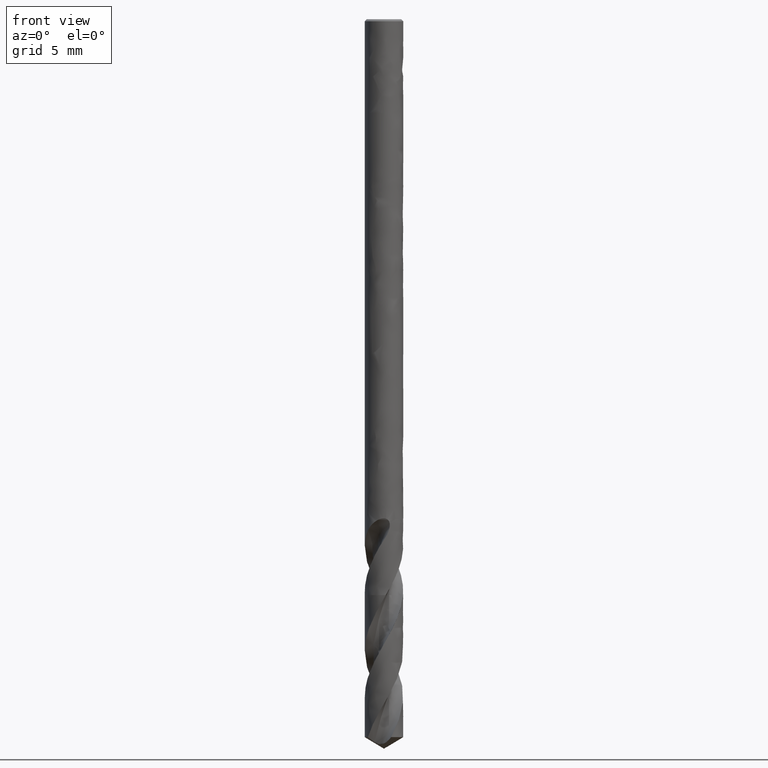
[diagram: clean part render]
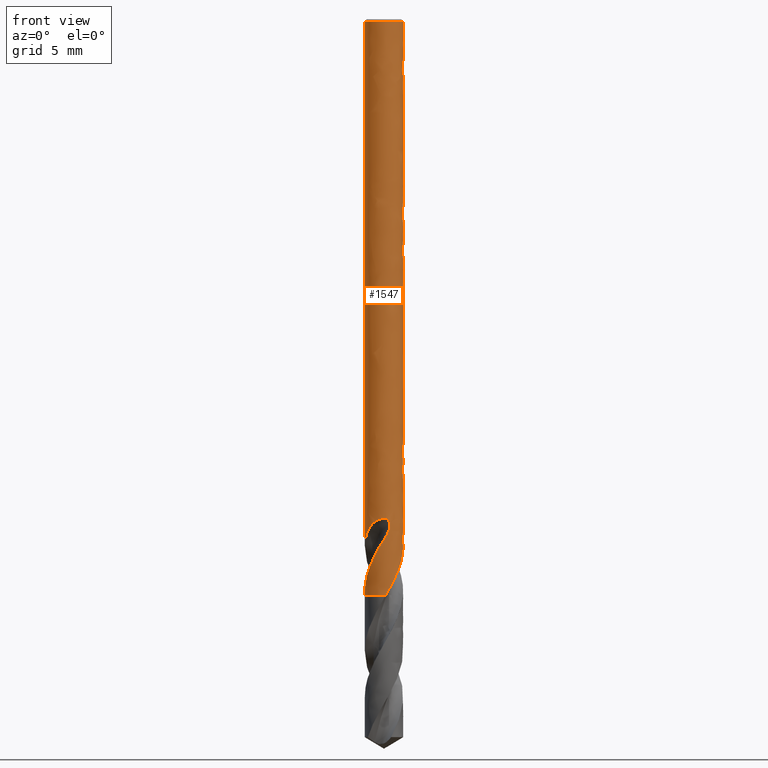
[diagram: same view with one face highlighted and labeled with its STEP entity id]
A machine part, front view. The second image highlights one B-rep face of the part: STEP entity #1547.
In plain terms, the highlighted face is a freeform B-spline surface patch.
Its self-contained STEP definition (entity closure, byte-faithful):
#73 = VERTEX_POINT('', #74);
#74 = CARTESIAN_POINT('', (-1., 6.73555739531043E-17, -0.100000000000001));
#90 = EDGE_CURVE('', #73, #73, #91, .T.);
#91 = CIRCLE('', #92, 1.);
#92 = AXIS2_PLACEMENT_3D('', #93, #94, #95);
#93 = CARTESIAN_POINT('', (3.74939945665473E-34, 6.12323399573668E-18, -0.100000000000001));
#94 = DIRECTION('', (3.74939945665464E-33, 6.12323399573677E-17, -1.));
#95 = DIRECTION('', (-1., 6.12323399573677E-17, 0.));
#129 = VERTEX_POINT('', #130);
#130 = CARTESIAN_POINT('', (0.0892022746884706, -0.996013531128166, -30.));
#139 = VERTEX_POINT('', #140);
#140 = CARTESIAN_POINT('', (0.820233834326033, 0.572028370823349, -26.5929633243649));
#165 = EDGE_CURVE('', #139, #129, #166, .T.);
#166 = B_SPLINE_CURVE_WITH_KNOTS('', 3, (#167, #168, #169, #170, #171, #172, #173, #174, #175, #176, #177, #178, #179, #180, #181, #182, #183, #184, #185, #186, #187, #188, #189, #190, #191, #192, #193, #194, #195, #196, #197, #198, #199, #200, #201, #202, #203, #204, #205, #206, #207, #208, #209, #210, #211, #212, #213, #214, #215, #216, #217, #218, #219, #220, #221, #222, #223, #224, #225, #226, #227, #228, #229, #230, #231, #232, #233, #234, #235, #236, #237, #238, #239, #240, #241, #242, #243, #244, #245, #246, #247, #248, #249, #250, #251, #252, #253, #254, #255, #256, #257), .UNSPECIFIED., .F., .U., (4, 3, 3, 3, 3, 3, 3, 3, 3, 3, 3, 3, 3, 3, 3, 3, 3, 3, 3, 3, 3, 3, 3, 3, 3, 3, 3, 3, 3, 3, 4), (0., 0.130559773605151, 0.261163531318267, 0.39182816469366, 0.522562665504094, 0.653377890110137, 0.784280432194496, 0.915281065249131, 1.00271370102755, 1.02864972184481, 1.11634475090883, 1.24805060626561, 1.30649632598959, 1.34544317250324, 1.43310372185477, 1.52072587831364, 1.57914416790791, 1.7106300376768, 1.84206578052283, 1.97349560302007, 2.10491905222947, 2.19251660133732, 2.32392258934105, 2.41151593649441, 2.60858355027827, 2.80559933237291, 3.10091408036615, 3.39603658546446, 3.6909632386327, 3.98569107425491, 4.00275386875489), .UNSPECIFIED.);
#167 = CARTESIAN_POINT('', (0.820233834326033, 0.572028370823349, -26.5929633243649));
#168 = CARTESIAN_POINT('', (0.836297249059347, 0.548994974350181, -26.6262110789591));
#169 = CARTESIAN_POINT('', (0.851242638690661, 0.525494665696933, -26.659696807052));
#170 = CARTESIAN_POINT('', (0.865060581018854, 0.501667410908204, -26.6933911720198));
#171 = CARTESIAN_POINT('', (0.878883178455205, 0.477832128987394, -26.7270968882373));
#172 = CARTESIAN_POINT('', (0.891586706356627, 0.45365411292247, -26.7610387611962));
#173 = CARTESIAN_POINT('', (0.903176270503058, 0.42926987362287, -26.7951906432313));
#174 = CARTESIAN_POINT('', (0.914771236656332, 0.404874268595801, -26.8293584437857));
#175 = CARTESIAN_POINT('', (0.925260524768472, 0.380252916133579, -26.863758256841));
#176 = CARTESIAN_POINT('', (0.934662548593376, 0.355536102606949, -26.8983661816061));
#177 = CARTESIAN_POINT('', (0.944069599756374, 0.330806072800452, -26.9329926115081));
#178 = CARTESIAN_POINT('', (0.952393406471856, 0.305967409147093, -26.9678522385555));
#179 = CARTESIAN_POINT('', (0.959666516199583, 0.281140850260791, -27.0029207498202));
#180 = CARTESIAN_POINT('', (0.96694411680783, 0.256298961878044, -27.0380109146142));
#181 = CARTESIAN_POINT('', (0.973174478397256, 0.231452696815392, -27.073330322705));
#182 = CARTESIAN_POINT('', (0.978399744802953, 0.206721888946325, -27.1088618057509));
#183 = CARTESIAN_POINT('', (0.983628499006707, 0.181974573581389, -27.1444170056042));
#184 = CARTESIAN_POINT('', (0.987853878335893, 0.157330516913604, -27.1802053952318));
#185 = CARTESIAN_POINT('', (0.99113106051936, 0.132888001241174, -27.2162021343819));
#186 = CARTESIAN_POINT('', (0.994410698438026, 0.10842716972827, -27.2522258474549));
#187 = CARTESIAN_POINT('', (0.996742224158535, 0.0841551253042054, -27.2884767068549));
#188 = CARTESIAN_POINT('', (0.998187855646047, 0.0601747857586036, -27.3249410685198));
#189 = CARTESIAN_POINT('', (0.999152701146181, 0.0441697921609095, -27.349278166578));
#190 = CARTESIAN_POINT('', (0.999723462958694, 0.0282903851073593, -27.3737170097187));
#191 = CARTESIAN_POINT('', (0.999921065859706, 0.012564316535934, -27.398253448115));
#192 = CARTESIAN_POINT('', (0.999979682792715, 0.00789933488222035, -27.4055319382504));
#193 = CARTESIAN_POINT('', (1.00000548057815, 0.00324764582949808, -27.4128193023905));
#194 = CARTESIAN_POINT('', (0.999999033861209, -0.00139006354094526, -27.42011543278));
#195 = CARTESIAN_POINT('', (0.999977236183254, -0.0170711142656147, -27.4447851525907));
#196 = CARTESIAN_POINT('', (0.999586664124454, -0.0325939120058782, -27.4695584259218));
#197 = CARTESIAN_POINT('', (0.998850502086033, -0.0479340639089024, -27.49443067366));
#198 = CARTESIAN_POINT('', (0.997744888096434, -0.0709728592574471, -27.5317853640908));
#199 = CARTESIAN_POINT('', (0.995858884559266, -0.0936163703802478, -27.569370655436));
#200 = CARTESIAN_POINT('', (0.993272187235476, -0.115803117680196, -27.6071653456952));
#201 = CARTESIAN_POINT('', (0.992124315818617, -0.125648696760693, -27.6239370971709));
#202 = CARTESIAN_POINT('', (0.990838429943319, -0.135404802749157, -27.6407527838199));
#203 = CARTESIAN_POINT('', (0.989422650758689, -0.145061428938463, -27.6576136801105));
#204 = CARTESIAN_POINT('', (0.988479208965835, -0.151496376438654, -27.6688493829647));
#205 = CARTESIAN_POINT('', (0.987478149976465, -0.157886890708616, -27.6801059448119));
#206 = CARTESIAN_POINT('', (0.986421861477089, -0.164231273514137, -27.6913830327248));
#207 = CARTESIAN_POINT('', (0.984044394790625, -0.178511045352233, -27.7167652089477));
#208 = CARTESIAN_POINT('', (0.981388733095139, -0.192552899752749, -27.7422573415975));
#209 = CARTESIAN_POINT('', (0.978466314575305, -0.206406567825763, -27.7678181407305));
#210 = CARTESIAN_POINT('', (0.975545175993839, -0.220254168375871, -27.7933677449414));
#211 = CARTESIAN_POINT('', (0.972358286850773, -0.233916316427618, -27.8189890099795));
#212 = CARTESIAN_POINT('', (0.9688797729416, -0.247531787018634, -27.8445935070165));
#213 = CARTESIAN_POINT('', (0.966560623982978, -0.256609314165795, -27.8616641999013));
#214 = CARTESIAN_POINT('', (0.96410804866676, -0.265677135164884, -27.8787224674278));
#215 = CARTESIAN_POINT('', (0.961521053735712, -0.274731256363314, -27.895767081038));
#216 = CARTESIAN_POINT('', (0.955698334841354, -0.295109959831643, -27.9341305090153));
#217 = CARTESIAN_POINT('', (0.949194874569849, -0.31541345124448, -27.9724367246868));
#218 = CARTESIAN_POINT('', (0.94202530128647, -0.335541847965547, -28.0107041139486));
#219 = CARTESIAN_POINT('', (0.934858461290307, -0.355662571051481, -28.0489569143693));
#220 = CARTESIAN_POINT('', (0.927027827600534, -0.375606677977791, -28.0871845504268));
#221 = CARTESIAN_POINT('', (0.918540056237776, -0.395327920955126, -28.1253750485353));
#222 = CARTESIAN_POINT('', (0.910052667195427, -0.415048275615216, -28.1635638264035));
#223 = CARTESIAN_POINT('', (0.900905112404991, -0.434553586876834, -28.2017234454699));
#224 = CARTESIAN_POINT('', (0.891099922112806, -0.453807149360332, -28.2398347232072));
#225 = CARTESIAN_POINT('', (0.881295207293379, -0.473059778201118, -28.2779441528544));
#226 = CARTESIAN_POINT('', (0.870830466391313, -0.492063736057131, -28.3160160323727));
#227 = CARTESIAN_POINT('', (0.859729178451579, -0.51075017348893, -28.3540515846915));
#228 = CARTESIAN_POINT('', (0.852329847348102, -0.523205227213588, -28.3794033859274));
#229 = CARTESIAN_POINT('', (0.844647228314536, -0.535520401683665, -28.4047432085626));
#230 = CARTESIAN_POINT('', (0.836691014876986, -0.547675219107198, -28.4300720729489));
#231 = CARTESIAN_POINT('', (0.824755816938485, -0.565908786242481, -28.4680681639766));
#232 = CARTESIAN_POINT('', (0.812198128913853, -0.583790791082237, -28.5060441731494));
#233 = CARTESIAN_POINT('', (0.799059878489804, -0.601251453709558, -28.5440063449801));
#234 = CARTESIAN_POINT('', (0.790302109168448, -0.612890481019328, -28.5693113843195));
#235 = CARTESIAN_POINT('', (0.781286880768287, -0.624341889907902, -28.5946156132089));
#236 = CARTESIAN_POINT('', (0.77203297551443, -0.635582476723779, -28.6199242074361));
#237 = CARTESIAN_POINT('', (0.751213528766191, -0.66087156194913, -28.6768635120142));
#238 = CARTESIAN_POINT('', (0.729171202973501, -0.68511337015154, -28.7338434337919));
#239 = CARTESIAN_POINT('', (0.705994268927292, -0.708217545844365, -28.7908004210195));
#240 = CARTESIAN_POINT('', (0.682823430756603, -0.731315644798191, -28.8477424277194));
#241 = CARTESIAN_POINT('', (0.658502086970476, -0.753290010240155, -28.9046947216929));
#242 = CARTESIAN_POINT('', (0.633173652633674, -0.774009771004559, -28.9616329686955));
#243 = CARTESIAN_POINT('', (0.595207860636144, -0.805067439905827, -29.046979959104));
#244 = CARTESIAN_POINT('', (0.554938546940676, -0.833335223584388, -29.1323934047892));
#245 = CARTESIAN_POINT('', (0.512843267652723, -0.858482255392198, -29.2177497354524));
#246 = CARTESIAN_POINT('', (0.47077539139292, -0.883612917078887, -29.3030505011694));
#247 = CARTESIAN_POINT('', (0.426831502448818, -0.905657231462521, -29.3884110420001));
#248 = CARTESIAN_POINT('', (0.381546362554769, -0.924349702883729, -29.4737182786138));
#249 = CARTESIAN_POINT('', (0.33629127520466, -0.943029769433935, -29.5589689028491));
#250 = CARTESIAN_POINT('', (0.289635831779578, -0.958387702609661, -29.6442795666985));
#251 = CARTESIAN_POINT('', (0.242144546271771, -0.970240186093614, -29.7295364326154));
#252 = CARTESIAN_POINT('', (0.194685275845479, -0.982084679517479, -29.814735824714));
#253 = CARTESIAN_POINT('', (0.1463289711457, -0.990444051764301, -29.8999952848897));
#254 = CARTESIAN_POINT('', (0.0976588746761553, -0.995219947648249, -29.985201055328));
#255 = CARTESIAN_POINT('', (0.0948411976399806, -0.995496440466951, -29.9901339065062));
#256 = CARTESIAN_POINT('', (0.0920221605279062, -0.995760984126165, -29.9950671269254));
#257 = CARTESIAN_POINT('', (0.0892022746884706, -0.996013531128166, -30.));
#359 = VERTEX_POINT('', #360);
#360 = CARTESIAN_POINT('', (0.982233978294788, 0.187660363111648, -29.4760360384215));
#370 = EDGE_CURVE('', #371, #359, #373, .T.);
#371 = VERTEX_POINT('', #372);
#372 = CARTESIAN_POINT('', (0.490775466668018, 0.871286084656924, -27.9558637886428));
#373 = B_SPLINE_CURVE_WITH_KNOTS('', 3, (#374, #375, #376, #377, #378, #379, #380, #381, #382, #383, #384, #385, #386, #387, #388, #389, #390, #391, #392, #393, #394, #395, #396, #397, #398, #399, #400, #401, #402, #403, #404, #405, #406, #407), .UNSPECIFIED., .F., .U., (4, 3, 3, 3, 3, 3, 3, 3, 3, 3, 3, 4), (0., 0.131414917532841, 0.328475479729887, 0.525501249424779, 0.656852061512318, 0.744423692268076, 0.941378259086426, 1.13828024597326, 1.33511823803413, 1.53189839187537, 1.72861731540205, 1.75093466749423), .UNSPECIFIED.);
#374 = CARTESIAN_POINT('', (0.490775466668019, 0.871286084656924, -27.9558637886428));
#375 = CARTESIAN_POINT('', (0.508996727088675, 0.861022466605744, -27.9943542995496));
#376 = CARTESIAN_POINT('', (0.527033612540354, 0.850108147702139, -28.0327646174293));
#377 = CARTESIAN_POINT('', (0.544788640034696, 0.838573394336791, -28.0711128126953));
#378 = CARTESIAN_POINT('', (0.571412829780769, 0.821276689931739, -28.1286170676173));
#379 = CARTESIAN_POINT('', (0.597432488260182, 0.802568572117667, -28.1859987467021));
#380 = CARTESIAN_POINT('', (0.622689291997332, 0.782469197880571, -28.2432077653732));
#381 = CARTESIAN_POINT('', (0.647941636458671, 0.762373372336901, -28.3004066833682));
#382 = CARTESIAN_POINT('', (0.672438294712122, 0.740875374762727, -28.3574693049333));
#383 = CARTESIAN_POINT('', (0.695923870179686, 0.718115566544919, -28.41442242776));
#384 = CARTESIAN_POINT('', (0.711580956127301, 0.70294232653172, -28.4523912627292));
#385 = CARTESIAN_POINT('', (0.726796920407524, 0.687201692631562, -28.4903220797967));
#386 = CARTESIAN_POINT('', (0.741495789266643, 0.670957520637386, -28.5282308401599));
#387 = CARTESIAN_POINT('', (0.751295530096569, 0.660127525685707, -28.5535046234899));
#388 = CARTESIAN_POINT('', (0.760866052116748, 0.649073291197624, -28.5787732200171));
#389 = CARTESIAN_POINT('', (0.77018106679327, 0.637825308648993, -28.6040477373214));
#390 = CARTESIAN_POINT('', (0.791131169751133, 0.612527829187582, -28.6608918495555));
#391 = CARTESIAN_POINT('', (0.810803358942247, 0.58623659869544, -28.7177875244286));
#392 = CARTESIAN_POINT('', (0.829136629533732, 0.559046017395212, -28.774661823147));
#393 = CARTESIAN_POINT('', (0.847465005787767, 0.531862695022389, -28.8315209384311));
#394 = CARTESIAN_POINT('', (0.864469559483466, 0.503754041776545, -28.8883872574712));
#395 = CARTESIAN_POINT('', (0.880045318542041, 0.47488971068263, -28.9452385327645));
#396 = CARTESIAN_POINT('', (0.895616015346008, 0.446034760742629, -29.0020713309082));
#397 = CARTESIAN_POINT('', (0.909766712839649, 0.416411804733838, -29.0589260485009));
#398 = CARTESIAN_POINT('', (0.922424079443914, 0.386178479024955, -29.1157658124612));
#399 = CARTESIAN_POINT('', (0.935077726849756, 0.355954036975746, -29.1725888748147));
#400 = CARTESIAN_POINT('', (0.946247320452676, 0.325099047787474, -29.2294297957214));
#401 = CARTESIAN_POINT('', (0.955872366106548, 0.293782265825895, -29.2862550521557));
#402 = CARTESIAN_POINT('', (0.965494416821339, 0.262475228426321, -29.3430626267848));
#403 = CARTESIAN_POINT('', (0.973578492629094, 0.230688522783995, -29.3998890869299));
#404 = CARTESIAN_POINT('', (0.980081614277475, 0.198595139303776, -29.4567005217961));
#405 = CARTESIAN_POINT('', (0.980819379881939, 0.19495421180114, -29.4631456607387));
#406 = CARTESIAN_POINT('', (0.98153685068964, 0.191309201948095, -29.4695908498747));
#407 = CARTESIAN_POINT('', (0.982233978294788, 0.187660363111643, -29.4760360384215));
#410 = VERTEX_POINT('', #411);
#411 = CARTESIAN_POINT('', (0.246002530381347, 0.969269186060291, -27.4932058231273));
#420 = EDGE_CURVE('', #421, #410, #423, .T.);
#421 = VERTEX_POINT('', #422);
#422 = CARTESIAN_POINT('', (0.00772631099795137, 0.99997015161372, -26.));
#423 = B_SPLINE_CURVE_WITH_KNOTS('', 3, (#424, #425, #426, #427, #428, #429, #430, #431, #432, #433, #434, #435, #436, #437, #438, #439, #440, #441, #442, #443, #444, #445, #446, #447, #448, #449, #450, #451, #452, #453, #454, #455, #456, #457, #458, #459, #460, #461, #462, #463, #464, #465, #466, #467, #468, #469, #470, #471, #472, #473, #474, #475, #476, #477, #478, #479, #480, #481, #482, #483, #484, #485, #486, #487, #488, #489, #490, #491, #492, #493, #494, #495, #496, #497, #498, #499, #500, #501, #502, #503, #504, #505, #506, #507, #508, #509, #510, #511), .UNSPECIFIED., .F., .U., (4, 3, 3, 3, 3, 3, 3, 3, 3, 3, 3, 3, 3, 3, 3, 3, 3, 3, 3, 3, 3, 3, 3, 3, 3, 3, 3, 3, 3, 4), (0., 0.0172874337608875, 0.0760638562588393, 0.134571616713359, 0.173356254986409, 0.212042548963615, 0.250657613759585, 0.28924385214064, 0.327845348796306, 0.366494484872518, 0.405207114387865, 0.443985592686044, 0.502249842305958, 0.560640228683373, 0.619123485872933, 0.707096440453135, 0.795174061407525, 0.883284322888988, 0.971379769013531, 1.05943131893812, 1.14742117820325, 1.23533724755918, 1.32317583754008, 1.36213641245224, 1.38810251818908, 1.47607046198281, 1.56398738523536, 1.6518513593332, 1.73965887937366, 1.82201907213121), .UNSPECIFIED.);
#424 = CARTESIAN_POINT('', (0.00772631098295753, 0.999970151613841, -26.));
#425 = CARTESIAN_POINT('', (0.00196400752444216, 1.00001467429127, -26.0000053258871));
#426 = CARTESIAN_POINT('', (-0.00379996085726174, 1.00000935672964, -26.0001194226774));
#427 = CARTESIAN_POINT('', (-0.0095575837068471, 0.999954325253755, -26.0003494279828));
#428 = CARTESIAN_POINT('', (-0.0291332175384423, 0.999767220948854, -26.0011314346815));
#429 = CARTESIAN_POINT('', (-0.0487265070050468, 0.998997219917961, -26.0032624623447));
#430 = CARTESIAN_POINT('', (-0.0679101674261391, 0.997691439855107, -26.0070219960501));
#431 = CARTESIAN_POINT('', (-0.0870061409620789, 0.996391628402201, -26.0107643452457));
#432 = CARTESIAN_POINT('', (-0.105847624699667, 0.994547351160411, -26.0161638579928));
#433 = CARTESIAN_POINT('', (-0.123823220522418, 0.992304293077209, -26.0233886443463));
#434 = CARTESIAN_POINT('', (-0.135739195024123, 0.99081737585962, -26.0281779359401));
#435 = CARTESIAN_POINT('', (-0.147339230514646, 0.989149663337741, -26.0337929798066));
#436 = CARTESIAN_POINT('', (-0.158418290266976, 0.987372090606622, -26.0402143001768));
#437 = CARTESIAN_POINT('', (-0.169469257393502, 0.985599025179074, -26.0466193383215));
#438 = CARTESIAN_POINT('', (-0.180059219441125, 0.983707877152713, -26.0538619533324));
#439 = CARTESIAN_POINT('', (-0.189999515367349, 0.981784184105741, -26.0618483211574));
#440 = CARTESIAN_POINT('', (-0.199921509226683, 0.979864032961253, -26.0698199844868));
#441 = CARTESIAN_POINT('', (-0.209250610328152, 0.977901746799412, -26.0785764455466));
#442 = CARTESIAN_POINT('', (-0.217850575693299, 0.975982134401087, -26.0879591979551));
#443 = CARTESIAN_POINT('', (-0.226444121124382, 0.974063955006792, -26.0973349460735));
#444 = CARTESIAN_POINT('', (-0.234356114061115, 0.972178850838706, -26.1073841557696));
#445 = CARTESIAN_POINT('', (-0.241520383325684, 0.970395746300559, -26.1179163384567));
#446 = CARTESIAN_POINT('', (-0.248687485579225, 0.968611936663915, -26.1284526859172));
#447 = CARTESIAN_POINT('', (-0.255141795677507, 0.966921915630207, -26.1395201127976));
#448 = CARTESIAN_POINT('', (-0.260879613050615, 0.965371341761586, -26.1509322607904));
#449 = CARTESIAN_POINT('', (-0.266624511659388, 0.963818854276991, -26.1623584929034));
#450 = CARTESIAN_POINT('', (-0.271675405472682, 0.962399799947363, -26.1741736471042));
#451 = CARTESIAN_POINT('', (-0.276069484495985, 0.961137679903417, -26.1862182301292));
#452 = CARTESIAN_POINT('', (-0.280470782184886, 0.959873486427816, -26.1982826001942));
#453 = CARTESIAN_POINT('', (-0.284228056815733, 0.958762413263087, -26.2106138862455));
#454 = CARTESIAN_POINT('', (-0.287398016631452, 0.95781124447164, -26.2230864667424));
#455 = CARTESIAN_POINT('', (-0.290573368434182, 0.956858457776475, -26.2355802626477));
#456 = CARTESIAN_POINT('', (-0.293167785993098, 0.956063474143145, -26.2482455456756));
#457 = CARTESIAN_POINT('', (-0.295242908241833, 0.955422223487034, -26.2609879262589));
#458 = CARTESIAN_POINT('', (-0.298360757265265, 0.954458751222617, -26.2801332170397));
#459 = CARTESIAN_POINT('', (-0.300317806994106, 0.953839762677668, -26.2995110091674));
#460 = CARTESIAN_POINT('', (-0.301307852082411, 0.95352691533773, -26.3189046513649));
#461 = CARTESIAN_POINT('', (-0.302300040527544, 0.953213390711991, -26.3383402790193));
#462 = CARTESIAN_POINT('', (-0.302324586337989, 0.953205390504635, -26.3578483253974));
#463 = CARTESIAN_POINT('', (-0.301542992733488, 0.953452580642234, -26.3772945169627));
#464 = CARTESIAN_POINT('', (-0.300760155992277, 0.953700163939567, -26.3967716379963));
#465 = CARTESIAN_POINT('', (-0.299167363395816, 0.954203626872317, -26.4162260077868));
#466 = CARTESIAN_POINT('', (-0.296892979752641, 0.954910759481535, -26.435574380254));
#467 = CARTESIAN_POINT('', (-0.29347175702063, 0.955974457844151, -26.4646790090666));
#468 = CARTESIAN_POINT('', (-0.288502980813909, 0.957500766773461, -26.4936130834965));
#469 = CARTESIAN_POINT('', (-0.282308965909467, 0.959323536543918, -26.5222177566678));
#470 = CARTESIAN_POINT('', (-0.276107581636963, 0.961148474966137, -26.5508564624283));
#471 = CARTESIAN_POINT('', (-0.268663267886244, 0.963273936044112, -26.579226624308));
#472 = CARTESIAN_POINT('', (-0.260211111511362, 0.965551747679028, -26.6072504652572));
#473 = CARTESIAN_POINT('', (-0.251755822867057, 0.967830403444058, -26.6352846915112));
#474 = CARTESIAN_POINT('', (-0.242278407600293, 0.970264779955003, -26.6630124496522));
#475 = CARTESIAN_POINT('', (-0.231957882326462, 0.972725830245413, -26.6903991619294));
#476 = CARTESIAN_POINT('', (-0.22163909240403, 0.975186466720929, -26.7177812692501));
#477 = CARTESIAN_POINT('', (-0.210466658832815, 0.977676153631823, -26.7448499592448));
#478 = CARTESIAN_POINT('', (-0.198588803727451, 0.980082898041847, -26.771597596488));
#479 = CARTESIAN_POINT('', (-0.186716867119871, 0.982488443219237, -26.7983319059182));
#480 = CARTESIAN_POINT('', (-0.174130584588898, 0.984813042081892, -26.8247647889868));
#481 = CARTESIAN_POINT('', (-0.160955909898685, 0.986961597565321, -26.8509041172733));
#482 = CARTESIAN_POINT('', (-0.147790465646443, 0.989108647728232, -26.8770251318287));
#483 = CARTESIAN_POINT('', (-0.134029727911344, 0.991081084638355, -26.9028672067247));
#484 = CARTESIAN_POINT('', (-0.119791303444234, 0.992799095295285, -26.9284516132303));
#485 = CARTESIAN_POINT('', (-0.105564819580933, 0.994515665196979, -26.9540145641835));
#486 = CARTESIAN_POINT('', (-0.0908556334920489, 0.995978942175521, -26.9793313923168));
#487 = CARTESIAN_POINT('', (-0.0757730033635135, 0.997125093436765, -27.0044312832024));
#488 = CARTESIAN_POINT('', (-0.0607036653755933, 0.99827023460868, -27.029509053856));
#489 = CARTESIAN_POINT('', (-0.0452561663329958, 0.999099172334949, -27.0543786162178));
#490 = CARTESIAN_POINT('', (-0.0295379920003732, 0.999563658317248, -27.0790770802402));
#491 = CARTESIAN_POINT('', (-0.0225662372317477, 0.999769679849617, -27.0900320188153));
#492 = CARTESIAN_POINT('', (-0.0155406190332311, 0.999904233887445, -27.1009544027664));
#493 = CARTESIAN_POINT('', (-0.00847066859247713, 0.99996412324323, -27.1118480111052));
#494 = CARTESIAN_POINT('', (-0.00375874939948147, 1.00000403778115, -27.1191082886196));
#495 = CARTESIAN_POINT('', (0.000972982528125538, 1.00001080299376, -27.12635599846));
#496 = CARTESIAN_POINT('', (0.00572188354140633, 0.999983629890381, -27.1335921995369));
#497 = CARTESIAN_POINT('', (0.0218102050499226, 0.999891572881349, -27.158106993402));
#498 = CARTESIAN_POINT('', (0.0380982356497104, 0.999408700825087, -27.1824929435558));
#499 = CARTESIAN_POINT('', (0.0544819990008416, 0.998514752913028, -27.2067950183085));
#500 = CARTESIAN_POINT('', (0.0708562599305578, 0.997621323481956, -27.2310829980971));
#501 = CARTESIAN_POINT('', (0.0873297955817186, 0.996316996895141, -27.2552923816268));
#502 = CARTESIAN_POINT('', (0.103794881002057, 0.994598724450303, -27.2794743811566));
#503 = CARTESIAN_POINT('', (0.120250050102274, 0.992881486858257, -27.3036418167506));
#504 = CARTESIAN_POINT('', (0.136698840651517, 0.990750564769908, -27.3277876766197));
#505 = CARTESIAN_POINT('', (0.153034541470358, 0.988220840256347, -27.3519647693087));
#506 = CARTESIAN_POINT('', (0.169359746331088, 0.98569274113265, -27.3761263278156));
#507 = CARTESIAN_POINT('', (0.185575367051684, 0.982765913115138, -27.4003239643886));
#508 = CARTESIAN_POINT('', (0.201581769731714, 0.979471689285522, -27.4246062145111));
#509 = CARTESIAN_POINT('', (0.216595180991649, 0.976381829675904, -27.4473820633194));
#510 = CARTESIAN_POINT('', (0.231427342767012, 0.972968398916198, -27.4702369579124));
#511 = CARTESIAN_POINT('', (0.246002530381347, 0.969269186060291, -27.4932058231273));
#513 = EDGE_CURVE('', #421, #514, #516, .T.);
#514 = VERTEX_POINT('', #515);
#515 = CARTESIAN_POINT('', (0.0085737161553439, 0.999963245020181, -26.));
#516 = LINE('', #517, #518);
#517 = CARTESIAN_POINT('', (0.00772631099795137, 0.99997015161372, -26.));
#518 = VECTOR('', #519, 0.00084743330227798);
#519 = DIRECTION('', (0.000847405157392526, -6.90659353885792E-6, 0.));
#521 = EDGE_CURVE('', #514, #139, #522, .T.);
#522 = B_SPLINE_CURVE_WITH_KNOTS('', 3, (#523, #524, #525, #526, #527, #528, #529, #530, #531, #532, #533, #534, #535, #536, #537, #538, #539, #540, #541, #542, #543, #544, #545, #546, #547, #548, #549, #550, #551, #552, #553, #554, #555, #556, #557, #558, #559, #560, #561, #562), .UNSPECIFIED., .F., .U., (4, 3, 3, 3, 3, 3, 3, 3, 3, 3, 3, 3, 3, 4), (0., 0.0588676359280913, 0.117473793978531, 0.175893472582458, 0.23418115746177, 0.292374836441839, 0.379386324441757, 0.466240350632785, 0.552996867439667, 0.639694269644428, 0.769031744835816, 0.898333247745336, 1.02767732757917, 1.151236942157), .UNSPECIFIED.);
#523 = CARTESIAN_POINT('', (0.00857371615550034, 0.99996324502018, -26.));
#524 = CARTESIAN_POINT('', (0.0281955318757105, 0.999795006958153, -26.0000181166948));
#525 = CARTESIAN_POINT('', (0.0478447434037307, 0.999044920849632, -26.00129224874));
#526 = CARTESIAN_POINT('', (0.0672909063978631, 0.997733398216256, -26.0035662183101));
#527 = CARTESIAN_POINT('', (0.0866506935532513, 0.996427701095477, -26.0058300873772));
#528 = CARTESIAN_POINT('', (0.105880716410157, 0.994562436101714, -26.0090921293414));
#529 = CARTESIAN_POINT('', (0.124840522636852, 0.992176820888172, -26.0131499483029));
#530 = CARTESIAN_POINT('', (0.143740000490407, 0.989798796484529, -26.0171948556549));
#531 = CARTESIAN_POINT('', (0.162421490164328, 0.986898320831081, -26.022041189864));
#532 = CARTESIAN_POINT('', (0.18079612212115, 0.983520595730439, -26.0275339498518));
#533 = CARTESIAN_POINT('', (0.199129238339297, 0.980150502279396, -26.0330142994692));
#534 = CARTESIAN_POINT('', (0.217193899601074, 0.976299031741094, -26.0391493939458));
#535 = CARTESIAN_POINT('', (0.234931172026889, 0.97201200836722, -26.0458206389233));
#536 = CARTESIAN_POINT('', (0.252639837925477, 0.967731899069418, -26.0524811245717));
#537 = CARTESIAN_POINT('', (0.270050310963938, 0.963011134343171, -26.0596868197025));
#538 = CARTESIAN_POINT('', (0.287121675198787, 0.957894119217278, -26.0673459927612));
#539 = CARTESIAN_POINT('', (0.312646866771078, 0.950243131893131, -26.0787980276965));
#540 = CARTESIAN_POINT('', (0.337471462070299, 0.941688565824157, -26.0912882377451));
#541 = CARTESIAN_POINT('', (0.361503178369914, 0.932370876866311, -26.1045878392495));
#542 = CARTESIAN_POINT('', (0.385491405268231, 0.923070049821663, -26.1178633729054));
#543 = CARTESIAN_POINT('', (0.40874441093088, 0.912988252184789, -26.1319765322372));
#544 = CARTESIAN_POINT('', (0.431202090790575, 0.902255372329719, -26.1467629487274));
#545 = CARTESIAN_POINT('', (0.453634557834831, 0.891534542077307, -26.1615327647856));
#546 = CARTESIAN_POINT('', (0.475314708622501, 0.880144719081453, -26.1770019813742));
#547 = CARTESIAN_POINT('', (0.49620223748813, 0.868206968131318, -26.1930488030385));
#548 = CARTESIAN_POINT('', (0.517075533901794, 0.856277351387392, -26.2090846906368));
#549 = CARTESIAN_POINT('', (0.53718924974289, 0.843782470518272, -26.2257222545205));
#550 = CARTESIAN_POINT('', (0.556516648685946, 0.830836457875655, -26.2428690430434));
#551 = CARTESIAN_POINT('', (0.585349773067316, 0.811523254176225, -26.2684490751873));
#552 = CARTESIAN_POINT('', (0.61249832470549, 0.791160548155259, -26.2952206492671));
#553 = CARTESIAN_POINT('', (0.637914325559936, 0.770107338781689, -26.3229600836314));
#554 = CARTESIAN_POINT('', (0.663323257530862, 0.749059984880251, -26.3506918029019));
#555 = CARTESIAN_POINT('', (0.687060764661984, 0.72727327973745, -26.379460352683));
#556 = CARTESIAN_POINT('', (0.709121273400931, 0.705086533420008, -26.4091038245761));
#557 = CARTESIAN_POINT('', (0.73118904631384, 0.68289248136058, -26.4387570575921));
#558 = CARTESIAN_POINT('', (0.751625070605199, 0.660252344445498, -26.4693442658604));
#559 = CARTESIAN_POINT('', (0.770464862798542, 0.63748246657679, -26.5007364889166));
#560 = CARTESIAN_POINT('', (0.788462110644182, 0.61573089250354, -26.530724803701));
#561 = CARTESIAN_POINT('', (0.805031683782676, 0.593826797031181, -26.5614981982408));
#562 = CARTESIAN_POINT('', (0.820233834326033, 0.572028370823349, -26.5929633243649));
#690 = VERTEX_POINT('', #691);
#691 = CARTESIAN_POINT('', (0.993616073432345, -0.112814443299109, -30.));
#697 = EDGE_CURVE('', #359, #690, #698, .T.);
#698 = B_SPLINE_CURVE_WITH_KNOTS('', 3, (#699, #700, #701, #702, #703, #704, #705, #706, #707, #708, #709, #710, #711), .UNSPECIFIED., .F., .U., (4, 3, 3, 3, 4), (0., 0.294641514480236, 0.352985246719214, 0.378925942835745, 0.604559301757479), .UNSPECIFIED.);
#699 = CARTESIAN_POINT('', (0.982233978294788, 0.187660363111648, -29.4760360384215));
#700 = CARTESIAN_POINT('', (0.991437701591293, 0.139487112251676, -29.5611276795221));
#701 = CARTESIAN_POINT('', (0.9970921989418, 0.0906124361657994, -29.6462822031108));
#702 = CARTESIAN_POINT('', (0.99913310532703, 0.0416297710727098, -29.7313850304883));
#703 = CARTESIAN_POINT('', (0.9995372374327, 0.0319304199762285, -29.7482367514077));
#704 = CARTESIAN_POINT('', (0.9998001106538, 0.0222253078987662, -29.7650891367334));
#705 = CARTESIAN_POINT('', (0.999921633212985, 0.0125190827410035, -29.7819413074497));
#706 = CARTESIAN_POINT('', (0.999975664377228, 0.00820351656801976, -29.7894340924101));
#707 = CARTESIAN_POINT('', (1.0000017558914, 0.00388765700191563, -29.7969269619489));
#708 = CARTESIAN_POINT('', (0.999999908370104, -0.00042808852294053, -29.8044198381907));
#709 = CARTESIAN_POINT('', (0.999983838545535, -0.0379666400965118, -29.8695932177647));
#710 = CARTESIAN_POINT('', (0.997849655205137, -0.0755270643552331, -29.9348199365261));
#711 = CARTESIAN_POINT('', (0.993616073432345, -0.112814443299109, -30.));
#752 = EDGE_CURVE('', #410, #371, #753, .T.);
#753 = B_SPLINE_CURVE_WITH_KNOTS('', 3, (#754, #755, #756, #757, #758, #759, #760, #761, #762, #763, #764, #765, #766, #767, #768, #769, #770, #771, #772, #773, #774, #775), .UNSPECIFIED., .F., .U., (4, 3, 3, 3, 3, 3, 3, 4), (0., 0.131643903931582, 0.190079255713099, 0.229021862755596, 0.316662613980427, 0.404257685423499, 0.462663609143952, 0.533098796016694), .UNSPECIFIED.);
#754 = CARTESIAN_POINT('', (0.246002530381347, 0.969269186060291, -27.4932058231273));
#755 = CARTESIAN_POINT('', (0.269299399097216, 0.963356392445794, -27.5299190821003));
#756 = CARTESIAN_POINT('', (0.291809967499188, 0.956747255794155, -27.5670356784416));
#757 = CARTESIAN_POINT('', (0.31343043870441, 0.949611162578434, -27.6045483430122));
#758 = CARTESIAN_POINT('', (0.323027539692967, 0.946443525453185, -27.6211998223818));
#759 = CARTESIAN_POINT('', (0.332450500565575, 0.943171893537286, -27.6379333781394));
#760 = CARTESIAN_POINT('', (0.341685394575568, 0.939814391852887, -27.6547516406121));
#761 = CARTESIAN_POINT('', (0.347839731591538, 0.937576878690839, -27.6659597015999));
#762 = CARTESIAN_POINT('', (0.353909469565266, 0.935301692862061, -27.6772071167668));
#763 = CARTESIAN_POINT('', (0.359895859244505, 0.932992481480245, -27.6884913376865));
#764 = CARTESIAN_POINT('', (0.373368292870754, 0.927795576711688, -27.7138865968512));
#765 = CARTESIAN_POINT('', (0.386418441313151, 0.922428351617464, -27.7394735751446));
#766 = CARTESIAN_POINT('', (0.39916522475139, 0.916879012383756, -27.7651671117068));
#767 = CARTESIAN_POINT('', (0.411905364359248, 0.911332565555711, -27.7908472563809));
#768 = CARTESIAN_POINT('', (0.424346161549757, 0.905604095994522, -27.8166377075678));
#769 = CARTESIAN_POINT('', (0.436695524531351, 0.899609370145901, -27.8424078561136));
#770 = CARTESIAN_POINT('', (0.444929731552552, 0.895612255983295, -27.8595906645232));
#771 = CARTESIAN_POINT('', (0.453137269421885, 0.891488443808274, -27.8767573043792));
#772 = CARTESIAN_POINT('', (0.461318629472647, 0.887234536129811, -27.8939036628533));
#773 = CARTESIAN_POINT('', (0.471185019512238, 0.882104495147907, -27.9145814791838));
#774 = CARTESIAN_POINT('', (0.481009316014192, 0.876787133312566, -27.9352338146685));
#775 = CARTESIAN_POINT('', (0.490775466668018, 0.871286084656924, -27.9558637886428));
#870 = VERTEX_POINT('', #871);
#871 = CARTESIAN_POINT('', (-0.982233978294787, -0.187660363111649, -29.4760360384215));
#881 = EDGE_CURVE('', #882, #870, #884, .T.);
#882 = VERTEX_POINT('', #883);
#883 = CARTESIAN_POINT('', (-0.490775466668013, -0.871286084656923, -27.9558637886428));
#884 = B_SPLINE_CURVE_WITH_KNOTS('', 3, (#885, #886, #887, #888, #889, #890, #891, #892, #893, #894, #895, #896, #897, #898, #899, #900, #901, #902, #903, #904, #905, #906, #907, #908, #909, #910, #911, #912, #913, #914, #915, #916, #917, #918), .UNSPECIFIED., .F., .U., (4, 3, 3, 3, 3, 3, 3, 3, 3, 3, 3, 4), (0., 0.131414917532844, 0.328475479729891, 0.525501249424784, 0.656852061512324, 0.744423692268078, 0.941378259086428, 1.13828024597326, 1.33511823803413, 1.53189839187537, 1.72861731540206, 1.75093466749424), .UNSPECIFIED.);
#885 = CARTESIAN_POINT('', (-0.490775466668015, -0.871286084656922, -27.9558637886428));
#886 = CARTESIAN_POINT('', (-0.508996727088671, -0.861022466605742, -27.9943542995496));
#887 = CARTESIAN_POINT('', (-0.52703361254035, -0.850108147702138, -28.0327646174293));
#888 = CARTESIAN_POINT('', (-0.544788640034692, -0.83857339433679, -28.0711128126953));
#889 = CARTESIAN_POINT('', (-0.571412829780766, -0.821276689931738, -28.1286170676173));
#890 = CARTESIAN_POINT('', (-0.597432488260179, -0.802568572117665, -28.1859987467021));
#891 = CARTESIAN_POINT('', (-0.622689291997329, -0.78246919788057, -28.2432077653732));
#892 = CARTESIAN_POINT('', (-0.647941636458668, -0.762373372336899, -28.3004066833682));
#893 = CARTESIAN_POINT('', (-0.672438294712119, -0.740875374762725, -28.3574693049333));
#894 = CARTESIAN_POINT('', (-0.695923870179684, -0.718115566544917, -28.41442242776));
#895 = CARTESIAN_POINT('', (-0.711580956127299, -0.702942326531719, -28.4523912627292));
#896 = CARTESIAN_POINT('', (-0.726796920407523, -0.68720169263156, -28.4903220797967));
#897 = CARTESIAN_POINT('', (-0.741495789266642, -0.670957520637384, -28.5282308401599));
#898 = CARTESIAN_POINT('', (-0.751295530096567, -0.660127525685706, -28.5535046234899));
#899 = CARTESIAN_POINT('', (-0.760866052116745, -0.649073291197623, -28.5787732200171));
#900 = CARTESIAN_POINT('', (-0.770181066793267, -0.637825308648992, -28.6040477373214));
#901 = CARTESIAN_POINT('', (-0.79113116975113, -0.612527829187581, -28.6608918495555));
#902 = CARTESIAN_POINT('', (-0.810803358942245, -0.586236598695439, -28.7177875244286));
#903 = CARTESIAN_POINT('', (-0.82913662953373, -0.559046017395211, -28.774661823147));
#904 = CARTESIAN_POINT('', (-0.847465005787765, -0.531862695022388, -28.8315209384311));
#905 = CARTESIAN_POINT('', (-0.864469559483464, -0.503754041776545, -28.8883872574712));
#906 = CARTESIAN_POINT('', (-0.880045318542039, -0.47488971068263, -28.9452385327645));
#907 = CARTESIAN_POINT('', (-0.895616015346006, -0.44603476074263, -29.0020713309082));
#908 = CARTESIAN_POINT('', (-0.909766712839648, -0.416411804733837, -29.0589260485009));
#909 = CARTESIAN_POINT('', (-0.922424079443912, -0.386178479024955, -29.1157658124612));
#910 = CARTESIAN_POINT('', (-0.935077726849754, -0.355954036975747, -29.1725888748147));
#911 = CARTESIAN_POINT('', (-0.946247320452674, -0.325099047787474, -29.2294297957214));
#912 = CARTESIAN_POINT('', (-0.955872366106546, -0.293782265825896, -29.2862550521556));
#913 = CARTESIAN_POINT('', (-0.965494416821337, -0.262475228426322, -29.3430626267848));
#914 = CARTESIAN_POINT('', (-0.973578492629093, -0.230688522783997, -29.3998890869299));
#915 = CARTESIAN_POINT('', (-0.980081614277474, -0.198595139303776, -29.4567005217961));
#916 = CARTESIAN_POINT('', (-0.980819379881938, -0.194954211801139, -29.4631456607387));
#917 = CARTESIAN_POINT('', (-0.981536850689639, -0.191309201948093, -29.4695908498747));
#918 = CARTESIAN_POINT('', (-0.982233978294788, -0.187660363111639, -29.4760360384215));
#921 = VERTEX_POINT('', #922);
#922 = CARTESIAN_POINT('', (-0.246002530381347, -0.969269186060287, -27.4932058231273));
#931 = EDGE_CURVE('', #932, #921, #934, .T.);
#932 = VERTEX_POINT('', #933);
#933 = CARTESIAN_POINT('', (-0.00772631100058118, -0.999970151613696, -26.));
#934 = B_SPLINE_CURVE_WITH_KNOTS('', 3, (#935, #936, #937, #938, #939, #940, #941, #942, #943, #944, #945, #946, #947, #948, #949, #950, #951, #952, #953, #954, #955, #956, #957, #958, #959, #960, #961, #962, #963, #964, #965, #966, #967, #968, #969, #970, #971, #972, #973, #974, #975, #976, #977, #978, #979, #980, #981, #982, #983, #984, #985, #986, #987, #988, #989, #990, #991, #992, #993, #994, #995, #996, #997, #998, #999, #1000, #1001, #1002, #1003, #1004, #1005, #1006, #1007, #1008, #1009, #1010, #1011, #1012, #1013, #1014, #1015, #1016, #1017, #1018, #1019, #1020, #1021, #1022), .UNSPECIFIED., .F., .U., (4, 3, 3, 3, 3, 3, 3, 3, 3, 3, 3, 3, 3, 3, 3, 3, 3, 3, 3, 3, 3, 3, 3, 3, 3, 3, 3, 3, 3, 4), (0., 0.0172874337608861, 0.0760638562588392, 0.134571616713361, 0.17335625498641, 0.212042548963618, 0.25065761375959, 0.289243852140646, 0.327845348796311, 0.366494484872524, 0.405207114387874, 0.443985592686053, 0.502249842305969, 0.56064022868338, 0.619123485872941, 0.70709644045314, 0.795174061407531, 0.88328432288899, 0.971379769013538, 1.05943131893812, 1.14742117820326, 1.23533724755919, 1.32317583754008, 1.36213641245225, 1.38810251818908, 1.47607046198282, 1.56398738523536, 1.65185135933321, 1.73965887937366, 1.82201907213146), .UNSPECIFIED.);
#935 = CARTESIAN_POINT('', (-0.00772631098321113, -0.999970151613836, -26.));
#936 = CARTESIAN_POINT('', (-0.00196400752469623, -1.00001467429127, -26.0000053258871));
#937 = CARTESIAN_POINT('', (0.00379996085700722, -1.00000935672964, -26.0001194226774));
#938 = CARTESIAN_POINT('', (0.00955758370659227, -0.999954325253754, -26.0003494279828));
#939 = CARTESIAN_POINT('', (0.0291332175381885, -0.999767220948857, -26.0011314346814));
#940 = CARTESIAN_POINT('', (0.0487265070047951, -0.99899721991797, -26.0032624623447));
#941 = CARTESIAN_POINT('', (0.0679101674258908, -0.997691439855121, -26.0070219960501));
#942 = CARTESIAN_POINT('', (0.0870061409618344, -0.996391628402218, -26.0107643452457));
#943 = CARTESIAN_POINT('', (0.105847624699427, -0.994547351160433, -26.0161638579927));
#944 = CARTESIAN_POINT('', (0.123823220522185, -0.992304293077235, -26.0233886443462));
#945 = CARTESIAN_POINT('', (0.135739195023895, -0.990817375859648, -26.02817793594));
#946 = CARTESIAN_POINT('', (0.147339230514425, -0.98914966333777, -26.0337929798064));
#947 = CARTESIAN_POINT('', (0.158418290266761, -0.987372090606653, -26.0402143001767));
#948 = CARTESIAN_POINT('', (0.169469257393293, -0.985599025179106, -26.0466193383214));
#949 = CARTESIAN_POINT('', (0.180059219440924, -0.983707877152746, -26.0538619533322));
#950 = CARTESIAN_POINT('', (0.189999515367156, -0.981784184105775, -26.0618483211573));
#951 = CARTESIAN_POINT('', (0.199921509226499, -0.979864032961287, -26.0698199844867));
#952 = CARTESIAN_POINT('', (0.209250610327976, -0.977901746799446, -26.0785764455464));
#953 = CARTESIAN_POINT('', (0.217850575693133, -0.975982134401121, -26.0879591979549));
#954 = CARTESIAN_POINT('', (0.226444121124225, -0.974063955006825, -26.0973349460733));
#955 = CARTESIAN_POINT('', (0.234356114060967, -0.972178850838738, -26.1073841557694));
#956 = CARTESIAN_POINT('', (0.241520383325545, -0.970395746300589, -26.1179163384565));
#957 = CARTESIAN_POINT('', (0.248687485579095, -0.968611936663944, -26.128452685917));
#958 = CARTESIAN_POINT('', (0.255141795677389, -0.966921915630235, -26.1395201127973));
#959 = CARTESIAN_POINT('', (0.260879613050506, -0.965371341761612, -26.1509322607902));
#960 = CARTESIAN_POINT('', (0.266624511659288, -0.963818854277015, -26.1623584929032));
#961 = CARTESIAN_POINT('', (0.27167540547259, -0.962399799947386, -26.174173647104));
#962 = CARTESIAN_POINT('', (0.276069484495901, -0.961137679903438, -26.186218230129));
#963 = CARTESIAN_POINT('', (0.280470782184811, -0.959873486427835, -26.198282600194));
#964 = CARTESIAN_POINT('', (0.284228056815665, -0.958762413263104, -26.2106138862453));
#965 = CARTESIAN_POINT('', (0.287398016631392, -0.957811244471654, -26.2230864667422));
#966 = CARTESIAN_POINT('', (0.290573368434129, -0.956858457776487, -26.2355802626475));
#967 = CARTESIAN_POINT('', (0.29316778599305, -0.956063474143156, -26.2482455456754));
#968 = CARTESIAN_POINT('', (0.295242908241792, -0.955422223487043, -26.2609879262587));
#969 = CARTESIAN_POINT('', (0.298360757265235, -0.954458751222623, -26.2801332170395));
#970 = CARTESIAN_POINT('', (0.300317806994086, -0.953839762677671, -26.2995110091672));
#971 = CARTESIAN_POINT('', (0.301307852082399, -0.953526915337731, -26.3189046513646));
#972 = CARTESIAN_POINT('', (0.30230004052754, -0.953213390711989, -26.3383402790191));
#973 = CARTESIAN_POINT('', (0.302324586337991, -0.95320539050463, -26.3578483253971));
#974 = CARTESIAN_POINT('', (0.301542992733497, -0.953452580642227, -26.3772945169625));
#975 = CARTESIAN_POINT('', (0.300760155992292, -0.953700163939558, -26.3967716379961));
#976 = CARTESIAN_POINT('', (0.299167363395838, -0.954203626872306, -26.4162260077866));
#977 = CARTESIAN_POINT('', (0.296892979752669, -0.954910759481522, -26.4355743802537));
#978 = CARTESIAN_POINT('', (0.293471757020667, -0.955974457844135, -26.4646790090663));
#979 = CARTESIAN_POINT('', (0.288502980813954, -0.957500766773444, -26.4936130834963));
#980 = CARTESIAN_POINT('', (0.282308965909519, -0.9593235365439, -26.5222177566676));
#981 = CARTESIAN_POINT('', (0.276107581637022, -0.961148474966117, -26.5508564624281));
#982 = CARTESIAN_POINT('', (0.26866326788631, -0.96327393604409, -26.5792266243077));
#983 = CARTESIAN_POINT('', (0.260211111511433, -0.965551747679005, -26.6072504652569));
#984 = CARTESIAN_POINT('', (0.251755822867134, -0.967830403444034, -26.6352846915109));
#985 = CARTESIAN_POINT('', (0.242278407600374, -0.970264779954979, -26.6630124496519));
#986 = CARTESIAN_POINT('', (0.231957882326548, -0.972725830245388, -26.6903991619292));
#987 = CARTESIAN_POINT('', (0.221639092404121, -0.975186466720904, -26.7177812692499));
#988 = CARTESIAN_POINT('', (0.210466658832911, -0.977676153631798, -26.7448499592446));
#989 = CARTESIAN_POINT('', (0.19858880372755, -0.980082898041822, -26.7715975964878));
#990 = CARTESIAN_POINT('', (0.186716867119975, -0.982488443219213, -26.798331905918));
#991 = CARTESIAN_POINT('', (0.174130584589003, -0.98481304208187, -26.8247647889866));
#992 = CARTESIAN_POINT('', (0.160955909898794, -0.986961597565299, -26.8509041172731));
#993 = CARTESIAN_POINT('', (0.147790465646555, -0.989108647728212, -26.8770251318285));
#994 = CARTESIAN_POINT('', (0.134029727911461, -0.991081084638335, -26.9028672067245));
#995 = CARTESIAN_POINT('', (0.119791303444353, -0.992799095295266, -26.9284516132301));
#996 = CARTESIAN_POINT('', (0.105564819581055, -0.994515665196962, -26.9540145641833));
#997 = CARTESIAN_POINT('', (0.0908556334921733, -0.995978942175506, -26.9793313923166));
#998 = CARTESIAN_POINT('', (0.0757730033636405, -0.997125093436751, -27.0044312832022));
#999 = CARTESIAN_POINT('', (0.0607036653757224, -0.998270234608669, -27.0295090538557));
#1000 = CARTESIAN_POINT('', (0.0452561663331265, -0.99909917233494, -27.0543786162175));
#1001 = CARTESIAN_POINT('', (0.0295379920005054, -0.999563658317241, -27.07907708024));
#1002 = CARTESIAN_POINT('', (0.0225662372318801, -0.999769679849611, -27.0900320188151));
#1003 = CARTESIAN_POINT('', (0.0155406190333651, -0.999904233887439, -27.1009544027662));
#1004 = CARTESIAN_POINT('', (0.00847066859261125, -0.999964123243224, -27.111848011105));
#1005 = CARTESIAN_POINT('', (0.00375874939961605, -1.00000403778115, -27.1191082886194));
#1006 = CARTESIAN_POINT('', (-0.000972982527991145, -1.00001080299375, -27.1263559984598));
#1007 = CARTESIAN_POINT('', (-0.00572188354127154, -0.999983629890378, -27.1335921995367));
#1008 = CARTESIAN_POINT('', (-0.0218102050497866, -0.999891572881348, -27.1581069934018));
#1009 = CARTESIAN_POINT('', (-0.0380982356495745, -0.999408700825089, -27.1824929435556));
#1010 = CARTESIAN_POINT('', (-0.0544819990007051, -0.998514752913032, -27.2067950183083));
#1011 = CARTESIAN_POINT('', (-0.070856259930421, -0.997621323481962, -27.2310829980969));
#1012 = CARTESIAN_POINT('', (-0.0873297955815801, -0.996316996895149, -27.2552923816266));
#1013 = CARTESIAN_POINT('', (-0.103794881001919, -0.994598724450314, -27.2794743811564));
#1014 = CARTESIAN_POINT('', (-0.120250050102135, -0.99288148685827, -27.3036418167504));
#1015 = CARTESIAN_POINT('', (-0.136698840651378, -0.990750564769923, -27.3277876766195));
#1016 = CARTESIAN_POINT('', (-0.153034541470219, -0.988220840256365, -27.3519647693085));
#1017 = CARTESIAN_POINT('', (-0.169359746330949, -0.98569274113267, -27.3761263278154));
#1018 = CARTESIAN_POINT('', (-0.185575367051547, -0.98276591311516, -27.4003239643884));
#1019 = CARTESIAN_POINT('', (-0.201581769731578, -0.979471689285546, -27.4246062145108));
#1020 = CARTESIAN_POINT('', (-0.216595180991559, -0.976381829675921, -27.4473820633192));
#1021 = CARTESIAN_POINT('', (-0.231427342766968, -0.972968398916206, -27.4702369579124));
#1022 = CARTESIAN_POINT('', (-0.246002530381347, -0.969269186060287, -27.4932058231273));
#1024 = EDGE_CURVE('', #932, #1025, #1027, .T.);
#1025 = VERTEX_POINT('', #1026);
#1026 = CARTESIAN_POINT('', (-0.00857371615271467, -0.9999632450202, -26.));
#1027 = LINE('', #1028, #1029);
#1028 = CARTESIAN_POINT('', (-0.00772631100058118, -0.999970151613696, -26.));
#1029 = VECTOR('', #1030, 0.000847433297018764);
#1030 = DIRECTION('', (-0.000847405152133484, 6.90659349600331E-6, 0.));
#1032 = EDGE_CURVE('', #1025, #1033, #1035, .T.);
#1033 = VERTEX_POINT('', #1034);
#1034 = CARTESIAN_POINT('', (-0.820233834326033, -0.572028370823346, -26.5929633243649));
#1035 = B_SPLINE_CURVE_WITH_KNOTS('', 3, (#1036, #1037, #1038, #1039, #1040, #1041, #1042, #1043, #1044, #1045, #1046, #1047, #1048, #1049, #1050, #1051, #1052, #1053, #1054, #1055, #1056, #1057, #1058, #1059, #1060, #1061, #1062, #1063, #1064, #1065, #1066, #1067, #1068, #1069, #1070, #1071, #1072, #1073, #1074, #1075), .UNSPECIFIED., .F., .U., (4, 3, 3, 3, 3, 3, 3, 3, 3, 3, 3, 3, 3, 4), (0., 0.0588676359280937, 0.117473793978535, 0.175893472582462, 0.234181157461774, 0.292374836441843, 0.379386324441763, 0.466240350632792, 0.552996867439672, 0.639694269644433, 0.769031744835821, 0.898333247745339, 1.02767732757917, 1.15123694215749), .UNSPECIFIED.);
#1036 = CARTESIAN_POINT('', (-0.00857371615500484, -0.999963245020181, -26.));
#1037 = CARTESIAN_POINT('', (-0.0281955318752159, -0.999795006958164, -26.0000181166948));
#1038 = CARTESIAN_POINT('', (-0.0478447434032389, -0.999044920849652, -26.00129224874));
#1039 = CARTESIAN_POINT('', (-0.0672909063973746, -0.997733398216285, -26.0035662183101));
#1040 = CARTESIAN_POINT('', (-0.0866506935527659, -0.996427701095516, -26.0058300873771));
#1041 = CARTESIAN_POINT('', (-0.105880716409676, -0.994562436101762, -26.0090921293413));
#1042 = CARTESIAN_POINT('', (-0.124840522636375, -0.992176820888229, -26.0131499483029));
#1043 = CARTESIAN_POINT('', (-0.143740000489934, -0.989798796484594, -26.0171948556548));
#1044 = CARTESIAN_POINT('', (-0.16242149016386, -0.986898320831154, -26.0220411898639));
#1045 = CARTESIAN_POINT('', (-0.180796122120687, -0.983520595730521, -26.0275339498517));
#1046 = CARTESIAN_POINT('', (-0.199129238338839, -0.980150502279485, -26.033014299469));
#1047 = CARTESIAN_POINT('', (-0.217193899600621, -0.976299031741192, -26.0391493939456));
#1048 = CARTESIAN_POINT('', (-0.234931172026441, -0.972012008367325, -26.0458206389231));
#1049 = CARTESIAN_POINT('', (-0.252639837925034, -0.96773189906953, -26.0524811245715));
#1050 = CARTESIAN_POINT('', (-0.270050310963501, -0.96301113434329, -26.0596868197023));
#1051 = CARTESIAN_POINT('', (-0.287121675198355, -0.957894119217404, -26.067345992761));
#1052 = CARTESIAN_POINT('', (-0.312646866770656, -0.950243131893267, -26.0787980276963));
#1053 = CARTESIAN_POINT('', (-0.337471462069884, -0.941688565824302, -26.0912882377449));
#1054 = CARTESIAN_POINT('', (-0.361503178369509, -0.932370876866464, -26.1045878392493));
#1055 = CARTESIAN_POINT('', (-0.385491405267835, -0.923070049821825, -26.1178633729052));
#1056 = CARTESIAN_POINT('', (-0.408744410930492, -0.912988252184959, -26.1319765322369));
#1057 = CARTESIAN_POINT('', (-0.431202090790196, -0.902255372329897, -26.1467629487272));
#1058 = CARTESIAN_POINT('', (-0.453634557834461, -0.891534542077492, -26.1615327647854));
#1059 = CARTESIAN_POINT('', (-0.47531470862214, -0.880144719081645, -26.1770019813739));
#1060 = CARTESIAN_POINT('', (-0.496202237487778, -0.868206968131517, -26.1930488030382));
#1061 = CARTESIAN_POINT('', (-0.51707553390145, -0.856277351387596, -26.2090846906365));
#1062 = CARTESIAN_POINT('', (-0.537189249742554, -0.843782470518484, -26.2257222545202));
#1063 = CARTESIAN_POINT('', (-0.556516648685618, -0.830836457875872, -26.2428690430431));
#1064 = CARTESIAN_POINT('', (-0.585349773067001, -0.81152325417645, -26.268449075187));
#1065 = CARTESIAN_POINT('', (-0.612498324705187, -0.791160548155491, -26.2952206492668));
#1066 = CARTESIAN_POINT('', (-0.637914325559646, -0.770107338781925, -26.3229600836311));
#1067 = CARTESIAN_POINT('', (-0.663323257530585, -0.749059984880494, -26.3506918029015));
#1068 = CARTESIAN_POINT('', (-0.687060764661721, -0.727273279737695, -26.3794603526827));
#1069 = CARTESIAN_POINT('', (-0.70912127340068, -0.705086533420257, -26.4091038245758));
#1070 = CARTESIAN_POINT('', (-0.731189046313602, -0.682892481360832, -26.4387570575917));
#1071 = CARTESIAN_POINT('', (-0.751625070604972, -0.660252344445753, -26.4693442658601));
#1072 = CARTESIAN_POINT('', (-0.770464862798327, -0.637482466577045, -26.5007364889162));
#1073 = CARTESIAN_POINT('', (-0.78846211064405, -0.61573089250371, -26.5307248037008));
#1074 = CARTESIAN_POINT('', (-0.805031683782616, -0.593826797031264, -26.5614981982406));
#1075 = CARTESIAN_POINT('', (-0.820233834326033, -0.572028370823346, -26.5929633243649));
#1235 = VERTEX_POINT('', #1236);
#1236 = CARTESIAN_POINT('', (-1., 1.88618119772607E-15, -29.8036766035612));
#1246 = EDGE_CURVE('', #870, #1235, #1247, .T.);
#1247 = B_SPLINE_CURVE_WITH_KNOTS('', 3, (#1248, #1249, #1250, #1251, #1252, #1253, #1254), .UNSPECIFIED., .F., .U., (4, 3, 4), (0., 0.294641514480233, 0.378067295167621), .UNSPECIFIED.);
#1248 = CARTESIAN_POINT('', (-0.982233978294787, -0.187660363111649, -29.4760360384215));
#1249 = CARTESIAN_POINT('', (-0.991437701591292, -0.139487112251678, -29.5611276795221));
#1250 = CARTESIAN_POINT('', (-0.997092198941799, -0.0906124361658019, -29.6462822031108));
#1251 = CARTESIAN_POINT('', (-0.99913310532703, -0.0416297710727127, -29.7313850304883));
#1252 = CARTESIAN_POINT('', (-0.999710974364928, -0.0277606559795849, -29.7554813287482));
#1253 = CARTESIAN_POINT('', (-1., -0.0138795392949894, -29.7795793783085));
#1254 = CARTESIAN_POINT('', (-1., 1.85495617515849E-15, -29.8036766035612));
#1295 = EDGE_CURVE('', #921, #882, #1296, .T.);
#1296 = B_SPLINE_CURVE_WITH_KNOTS('', 3, (#1297, #1298, #1299, #1300, #1301, #1302, #1303, #1304, #1305, #1306, #1307, #1308, #1309, #1310, #1311, #1312, #1313, #1314, #1315, #1316, #1317, #1318), .UNSPECIFIED., .F., .U., (4, 3, 3, 3, 3, 3, 3, 4), (0., 0.131643903931583, 0.190079255713098, 0.229021862755594, 0.316662613980425, 0.4042576854235, 0.462663609143952, 0.533098796016683), .UNSPECIFIED.);
#1297 = CARTESIAN_POINT('', (-0.246002530381347, -0.969269186060287, -27.4932058231273));
#1298 = CARTESIAN_POINT('', (-0.269299399097216, -0.96335639244579, -27.5299190821003));
#1299 = CARTESIAN_POINT('', (-0.291809967499187, -0.956747255794151, -27.5670356784416));
#1300 = CARTESIAN_POINT('', (-0.31343043870441, -0.94961116257843, -27.6045483430122));
#1301 = CARTESIAN_POINT('', (-0.323027539692967, -0.946443525453182, -27.6211998223818));
#1302 = CARTESIAN_POINT('', (-0.332450500565575, -0.943171893537282, -27.6379333781394));
#1303 = CARTESIAN_POINT('', (-0.341685394575568, -0.939814391852883, -27.6547516406121));
#1304 = CARTESIAN_POINT('', (-0.347839731591538, -0.937576878690835, -27.6659597015999));
#1305 = CARTESIAN_POINT('', (-0.353909469565266, -0.935301692862057, -27.6772071167668));
#1306 = CARTESIAN_POINT('', (-0.359895859244505, -0.932992481480242, -27.6884913376865));
#1307 = CARTESIAN_POINT('', (-0.373368292870753, -0.927795576711684, -27.7138865968512));
#1308 = CARTESIAN_POINT('', (-0.386418441313151, -0.92242835161746, -27.7394735751446));
#1309 = CARTESIAN_POINT('', (-0.39916522475139, -0.916879012383752, -27.7651671117068));
#1310 = CARTESIAN_POINT('', (-0.411905364359249, -0.911332565555707, -27.7908472563809));
#1311 = CARTESIAN_POINT('', (-0.424346161549757, -0.905604095994518, -27.8166377075678));
#1312 = CARTESIAN_POINT('', (-0.436695524531351, -0.899609370145897, -27.8424078561137));
#1313 = CARTESIAN_POINT('', (-0.444929731552552, -0.895612255983291, -27.8595906645232));
#1314 = CARTESIAN_POINT('', (-0.453137269421885, -0.89148844380827, -27.8767573043792));
#1315 = CARTESIAN_POINT('', (-0.461318629472647, -0.887234536129808, -27.8939036628533));
#1316 = CARTESIAN_POINT('', (-0.471185019512237, -0.882104495147904, -27.9145814791838));
#1317 = CARTESIAN_POINT('', (-0.48100931601419, -0.876787133312564, -27.9352338146685));
#1318 = CARTESIAN_POINT('', (-0.490775466668013, -0.871286084656923, -27.9558637886428));
#1360 = VERTEX_POINT('', #1361);
#1361 = CARTESIAN_POINT('', (-0.0892022746884696, 0.99601353112817, -30.));
#1368 = EDGE_CURVE('', #1033, #1369, #1371, .T.);
#1369 = VERTEX_POINT('', #1370);
#1370 = CARTESIAN_POINT('', (-1., 1.74009631871715E-15, -27.4179294785839));
#1371 = B_SPLINE_CURVE_WITH_KNOTS('', 3, (#1372, #1373, #1374, #1375, #1376, #1377, #1378, #1379, #1380, #1381, #1382, #1383, #1384, #1385, #1386, #1387, #1388, #1389, #1390, #1391, #1392, #1393, #1394, #1395, #1396), .UNSPECIFIED., .F., .U., (4, 3, 3, 3, 3, 3, 3, 3, 4), (0., 0.13055977360515, 0.261163531318269, 0.391828164693659, 0.522562665504094, 0.653377890110136, 0.784280432194495, 0.915281065249132, 1.02605621189539), .UNSPECIFIED.);
#1372 = CARTESIAN_POINT('', (-0.820233834326033, -0.572028370823346, -26.5929633243649));
#1373 = CARTESIAN_POINT('', (-0.836297249059347, -0.548994974350177, -26.6262110789591));
#1374 = CARTESIAN_POINT('', (-0.851242638690661, -0.525494665696929, -26.659696807052));
#1375 = CARTESIAN_POINT('', (-0.865060581018854, -0.5016674109082, -26.6933911720198));
#1376 = CARTESIAN_POINT('', (-0.878883178455205, -0.47783212898739, -26.7270968882373));
#1377 = CARTESIAN_POINT('', (-0.891586706356627, -0.453654112922467, -26.7610387611962));
#1378 = CARTESIAN_POINT('', (-0.903176270503058, -0.429269873622866, -26.7951906432313));
#1379 = CARTESIAN_POINT('', (-0.914771236656332, -0.404874268595797, -26.8293584437857));
#1380 = CARTESIAN_POINT('', (-0.925260524768472, -0.380252916133575, -26.863758256841));
#1381 = CARTESIAN_POINT('', (-0.934662548593376, -0.355536102606946, -26.8983661816061));
#1382 = CARTESIAN_POINT('', (-0.944069599756373, -0.330806072800449, -26.9329926115081));
#1383 = CARTESIAN_POINT('', (-0.952393406471856, -0.305967409147091, -26.9678522385555));
#1384 = CARTESIAN_POINT('', (-0.959666516199583, -0.281140850260788, -27.0029207498202));
#1385 = CARTESIAN_POINT('', (-0.96694411680783, -0.256298961878042, -27.0380109146142));
#1386 = CARTESIAN_POINT('', (-0.973174478397256, -0.231452696815389, -27.073330322705));
#1387 = CARTESIAN_POINT('', (-0.978399744802953, -0.206721888946323, -27.1088618057509));
#1388 = CARTESIAN_POINT('', (-0.983628499006707, -0.181974573581387, -27.1444170056042));
#1389 = CARTESIAN_POINT('', (-0.987853878335893, -0.1573305169136, -27.1802053952318));
#1390 = CARTESIAN_POINT('', (-0.99113106051936, -0.13288800124117, -27.2162021343819));
#1391 = CARTESIAN_POINT('', (-0.994410698438025, -0.108427169728266, -27.2522258474549));
#1392 = CARTESIAN_POINT('', (-0.996742224158535, -0.0841551253042021, -27.2884767068549));
#1393 = CARTESIAN_POINT('', (-0.998187855646047, -0.0601747857586, -27.3249410685198));
#1394 = CARTESIAN_POINT('', (-0.999410292792277, -0.0398968255087197, -27.3557756142514));
#1395 = CARTESIAN_POINT('', (-1., -0.0198199519572666, -27.3867745634122));
#1396 = CARTESIAN_POINT('', (-1., 1.96425511787853E-15, -27.4179294785839));
#1398 = EDGE_CURVE('', #1369, #1360, #1399, .T.);
#1399 = B_SPLINE_CURVE_WITH_KNOTS('', 3, (#1400, #1401, #1402, #1403, #1404, #1405, #1406, #1407, #1408, #1409, #1410, #1411, #1412, #1413, #1414, #1415, #1416, #1417, #1418, #1419, #1420, #1421, #1422, #1423, #1424, #1425, #1426, #1427, #1428, #1429, #1430, #1431, #1432, #1433, #1434, #1435, #1436, #1437, #1438, #1439, #1440, #1441, #1442, #1443, #1444, #1445, #1446, #1447, #1448, #1449, #1450, #1451, #1452, #1453, #1454, #1455, #1456, #1457, #1458, #1459, #1460, #1461, #1462, #1463), .UNSPECIFIED., .F., .U., (4, 3, 3, 3, 3, 3, 3, 3, 3, 3, 3, 3, 3, 3, 3, 3, 3, 3, 3, 3, 3, 4), (0., 0.0876950846803203, 0.21939918932108, 0.277844898602986, 0.316792059608854, 0.404455058623917, 0.492077073445329, 0.550495127512745, 0.681982124367334, 0.81341841841057, 0.944848276284414, 1.07627203258699, 1.16386982274979, 1.29527553693777, 1.38286915831639, 1.57993760918235, 1.77695418034011, 2.07227060066689, 2.36739483380691, 2.66232320853886, 2.95705280062014, 2.97669446461167), .UNSPECIFIED.);
#1400 = CARTESIAN_POINT('', (-1., 1.96425511787853E-15, -27.4179294785839));
#1401 = CARTESIAN_POINT('', (-1., 0.0156904542027208, -27.4425932502593));
#1402 = CARTESIAN_POINT('', (-0.999630559233198, 0.031223435829025, -27.4673604971796));
#1403 = CARTESIAN_POINT('', (-0.998914833649263, 0.0465741893736041, -27.4922268215732));
#1404 = CARTESIAN_POINT('', (-0.997839927369804, 0.0696285858488431, -27.5295720958482));
#1405 = CARTESIAN_POINT('', (-0.995983174371431, 0.0922881469504207, -27.567148526285));
#1406 = CARTESIAN_POINT('', (-0.99342410333617, 0.114492580155779, -27.6049340318723));
#1407 = CARTESIAN_POINT('', (-0.992288476453723, 0.124346136743325, -27.6217019274565));
#1408 = CARTESIAN_POINT('', (-0.991014506311944, 0.134110553356409, -27.6385136933617));
#1409 = CARTESIAN_POINT('', (-0.989610261447559, 0.143775973089089, -27.655370511149));
#1410 = CARTESIAN_POINT('', (-0.988674498129826, 0.150216833558457, -27.6666035888971));
#1411 = CARTESIAN_POINT('', (-0.987680937523918, 0.156613520844051, -27.6778574301544));
#1412 = CARTESIAN_POINT('', (-0.986632010318417, 0.162964033501384, -27.6891318752838));
#1413 = CARTESIAN_POINT('', (-0.984271065330185, 0.177257886261051, -27.714508607419));
#1414 = CARTESIAN_POINT('', (-0.981631169116271, 0.191313687641277, -27.7399956658946));
#1415 = CARTESIAN_POINT('', (-0.978724584685965, 0.205178428036406, -27.7655532002542));
#1416 = CARTESIAN_POINT('', (-0.975819359141625, 0.219036686389947, -27.7910987859586));
#1417 = CARTESIAN_POINT('', (-0.972648480530334, 0.23270659740209, -27.81671786658));
#1418 = CARTESIAN_POINT('', (-0.969187404777836, 0.246324530690736, -27.8423233631895));
#1419 = CARTESIAN_POINT('', (-0.966879887530567, 0.255403677806492, -27.8593946812642));
#1420 = CARTESIAN_POINT('', (-0.964439421636426, 0.264471612085989, -27.876454533477));
#1421 = CARTESIAN_POINT('', (-0.961864318983548, 0.273527022186687, -27.8935001734837));
#1422 = CARTESIAN_POINT('', (-0.95606829376798, 0.29390888355532, -27.931866395189));
#1423 = CARTESIAN_POINT('', (-0.949591390037573, 0.314217520482579, -27.9701748111391));
#1424 = CARTESIAN_POINT('', (-0.942447981457844, 0.33435281103355, -28.0084438970622));
#1425 = CARTESIAN_POINT('', (-0.935307327453901, 0.354480337198211, -28.0466982260108));
#1426 = CARTESIAN_POINT('', (-0.927502536628407, 0.374432792306581, -28.0849269965226));
#1427 = CARTESIAN_POINT('', (-0.919040685415847, 0.394162680311533, -28.1231189920949));
#1428 = CARTESIAN_POINT('', (-0.910579248563021, 0.413891602183787, -28.1613091174825));
#1429 = CARTESIAN_POINT('', (-0.90145768690242, 0.433405992585555, -28.1994703227395));
#1430 = CARTESIAN_POINT('', (-0.891678395387951, 0.452669459096118, -28.2375832636447));
#1431 = CARTESIAN_POINT('', (-0.881899557872634, 0.471932031309025, -28.275694435174));
#1432 = CARTESIAN_POINT('', (-0.871460426210871, 0.490947101803169, -28.3137679100835));
#1433 = CARTESIAN_POINT('', (-0.860384196943122, 0.509645988555332, -28.3518047675534));
#1434 = CARTESIAN_POINT('', (-0.853001565107843, 0.522109345288364, -28.3771574492361));
#1435 = CARTESIAN_POINT('', (-0.845335353722449, 0.534433486481761, -28.4024979734113));
#1436 = CARTESIAN_POINT('', (-0.837395342970119, 0.546597694444423, -28.427827506693));
#1437 = CARTESIAN_POINT('', (-0.825484508443004, 0.564845260186595, -28.4658244174));
#1438 = CARTESIAN_POINT('', (-0.812950795665039, 0.582742198604919, -28.5038012049077));
#1439 = CARTESIAN_POINT('', (-0.799835401423556, 0.600219402076959, -28.541763563246));
#1440 = CARTESIAN_POINT('', (-0.791092822118546, 0.611869516024797, -28.5670688588602));
#1441 = CARTESIAN_POINT('', (-0.782092119904475, 0.623332908855606, -28.5923729384013));
#1442 = CARTESIAN_POINT('', (-0.772852427030867, 0.634585790916013, -28.6176813669373));
#1443 = CARTESIAN_POINT('', (-0.752064932092069, 0.659902566276127, -28.6746203623452));
#1444 = CARTESIAN_POINT('', (-0.730053370246707, 0.684173253411957, -28.7316002080498));
#1445 = CARTESIAN_POINT('', (-0.706906327119991, 0.707307178443516, -28.7885575970845));
#1446 = CARTESIAN_POINT('', (-0.683765377621339, 0.730435013300444, -28.8454999916708));
#1447 = CARTESIAN_POINT('', (-0.659472397823131, 0.752440704451017, -28.9024525996361));
#1448 = CARTESIAN_POINT('', (-0.634170456361233, 0.77319326968009, -28.9593909819872));
#1449 = CARTESIAN_POINT('', (-0.596244312707753, 0.804300162059922, -29.0447383167636));
#1450 = CARTESIAN_POINT('', (-0.556011097146973, 0.832620008702968, -29.1301521752546));
#1451 = CARTESIAN_POINT('', (-0.513947932249874, 0.857821381720042, -29.215508953757));
#1452 = CARTESIAN_POINT('', (-0.471912141385413, 0.883006354088018, -29.3008101834377));
#1453 = CARTESIAN_POINT('', (-0.427996276573369, 0.905107384616099, -29.3861711494424));
#1454 = CARTESIAN_POINT('', (-0.382734855672136, 0.923858230603403, -29.4714788272012));
#1455 = CARTESIAN_POINT('', (-0.33750347239184, 0.942596632641913, -29.5567298907477));
#1456 = CARTESIAN_POINT('', (-0.290867451289912, 0.958014648453058, -29.6420410027987));
#1457 = CARTESIAN_POINT('', (-0.243391065324085, 0.969928239263372, -29.7272983116341));
#1458 = CARTESIAN_POINT('', (-0.195946678591479, 0.981833800276069, -29.8124981567756));
#1459 = CARTESIAN_POINT('', (-0.147600763549254, 0.990255340951336, -29.8977580703872));
#1460 = CARTESIAN_POINT('', (-0.0989364496866006, 0.995093753835996, -29.9829642916661));
#1461 = CARTESIAN_POINT('', (-0.0956933138531108, 0.995416200182363, -29.9886426898091));
#1462 = CARTESIAN_POINT('', (-0.0924483578639262, 0.995722814191071, -29.9943215728559));
#1463 = CARTESIAN_POINT('', (-0.0892022746884696, 0.99601353112817, -30.));
#1514 = VERTEX_POINT('', #1515);
#1515 = CARTESIAN_POINT('', (-1., 1.8982025386784E-15, -30.));
#1522 = EDGE_CURVE('', #1514, #1235, #1523, .T.);
#1523 = LINE('', #1524, #1525);
#1524 = CARTESIAN_POINT('', (-1., 1.8982025386784E-15, -30.));
#1525 = VECTOR('', #1526, 0.19632339643881);
#1526 = DIRECTION('', (0., -1.20213409523262E-17, 0.19632339643881));
#1547 = ADVANCED_FACE('', (#1548), #1588, .T.);
#1548 = FACE_OUTER_BOUND('', #1549, .T.);
#1549 = EDGE_LOOP('', (#1550, #1557, #1558, #1559, #1560, #1561, #1562, #1563, #1564, #1571, #1572, #1578, #1579, #1580, #1581, #1582, #1583, #1584, #1585, #1586, #1587));
#1550 = ORIENTED_EDGE('', *, *, #1551, .F.);
#1551 = EDGE_CURVE('', #129, #1514, #1552, .T.);
#1552 = CIRCLE('', #1553, 1.);
#1553 = AXIS2_PLACEMENT_3D('', #1554, #1555, #1556);
#1554 = CARTESIAN_POINT('', (4.16333634234435E-17, 2.08677037926169E-15, -30.));
#1555 = DIRECTION('', (3.74939945665465E-33, 6.12323399573677E-17, -1.));
#1556 = DIRECTION('', (-1., -1.88567840583293E-16, -1.52958495762775E-32));
#1557 = ORIENTED_EDGE('', *, *, #165, .F.);
#1558 = ORIENTED_EDGE('', *, *, #521, .F.);
#1559 = ORIENTED_EDGE('', *, *, #513, .F.);
#1560 = ORIENTED_EDGE('', *, *, #420, .T.);
#1561 = ORIENTED_EDGE('', *, *, #752, .T.);
#1562 = ORIENTED_EDGE('', *, *, #370, .T.);
#1563 = ORIENTED_EDGE('', *, *, #697, .T.);
#1564 = ORIENTED_EDGE('', *, *, #1565, .F.);
#1565 = EDGE_CURVE('', #1360, #690, #1566, .T.);
#1566 = CIRCLE('', #1567, 1.);
#1567 = AXIS2_PLACEMENT_3D('', #1568, #1569, #1570);
#1568 = CARTESIAN_POINT('', (4.16333634234435E-17, 2.08677037926169E-15, -30.));
#1569 = DIRECTION('', (3.74939945665465E-33, 6.12323399573677E-17, -1.));
#1570 = DIRECTION('', (-1., -1.88567840583293E-16, -1.52958495762775E-32));
#1571 = ORIENTED_EDGE('', *, *, #1398, .F.);
#1572 = ORIENTED_EDGE('', *, *, #1573, .T.);
#1573 = EDGE_CURVE('', #1369, #73, #1574, .T.);
#1574 = LINE('', #1575, #1576);
#1575 = CARTESIAN_POINT('', (-1., 1.74009631871715E-15, -27.4179294785839));
#1576 = VECTOR('', #1577, 27.3179294785839);
#1577 = DIRECTION('', (0., -1.67274074476404E-15, 27.3179294785839));
#1578 = ORIENTED_EDGE('', *, *, #90, .T.);
#1579 = ORIENTED_EDGE('', *, *, #1573, .F.);
#1580 = ORIENTED_EDGE('', *, *, #1368, .F.);
#1581 = ORIENTED_EDGE('', *, *, #1032, .F.);
#1582 = ORIENTED_EDGE('', *, *, #1024, .F.);
#1583 = ORIENTED_EDGE('', *, *, #931, .T.);
#1584 = ORIENTED_EDGE('', *, *, #1295, .T.);
#1585 = ORIENTED_EDGE('', *, *, #881, .T.);
#1586 = ORIENTED_EDGE('', *, *, #1246, .T.);
#1587 = ORIENTED_EDGE('', *, *, #1522, .F.);
#1588 = (
   BOUNDED_SURFACE ()
   B_SPLINE_SURFACE (1, 2, ((#1589, #1590, #1591, #1592, #1593, #1594, #1595, #1596, #1597), (#1598, #1599, #1600, #1601, #1602, #1603, #1604, #1605, #1606)), .UNSPECIFIED., .F., .T., .U.)
   B_SPLINE_SURFACE_WITH_KNOTS ((2, 2), (3, 2, 2, 2, 3), (-0.251046025104603, 1.), (0., 0.25, 0.5, 0.75, 1.), .UNSPECIFIED.)
   GEOMETRIC_REPRESENTATION_ITEM ()
   RATIONAL_B_SPLINE_SURFACE (((1., 0.707106781186548, 1., 0.707106781186548, 1., 0.707106781186548, 1., 0.707106781186548, 1.), (1., 0.707106781186548, 1., 0.707106781186548, 1., 0.707106781186548, 1., 0.707106781186548, 1.)))
   REPRESENTATION_ITEM ('')
   SURFACE ()
);
#1589 = CARTESIAN_POINT('', (-1., 1.8982025386784E-15, -30.));
#1590 = CARTESIAN_POINT('', (-1., 1., -30.));
#1591 = CARTESIAN_POINT('', (-2.08166817117217E-16, 1., -30.));
#1592 = CARTESIAN_POINT('', (0.999999999999999, 1., -30.));
#1593 = CARTESIAN_POINT('', (1., 2.39780289975972E-15, -30.));
#1594 = CARTESIAN_POINT('', (1., -0.999999999999997, -30.));
#1595 = CARTESIAN_POINT('', (4.13898223878839E-16, -0.999999999999998, -30.));
#1596 = CARTESIAN_POINT('', (-0.999999999999999, -0.999999999999998, -30.));
#1597 = CARTESIAN_POINT('', (-1., 1.8982025386784E-15, -30.));
#1598 = CARTESIAN_POINT('', (-1., 6.73555739531043E-17, -0.100000000000001));
#1599 = CARTESIAN_POINT('', (-1., 1., -0.100000000000005));
#1600 = CARTESIAN_POINT('', (-2.08166817117217E-16, 1., -0.100000000000001));
#1601 = CARTESIAN_POINT('', (1., 1., -0.100000000000005));
#1602 = CARTESIAN_POINT('', (1., 5.66955935034425E-16, -0.100000000000001));
#1603 = CARTESIAN_POINT('', (1., -0.999999999999999, -0.100000000000005));
#1604 = CARTESIAN_POINT('', (4.13898223878839E-16, -1., -0.100000000000001));
#1605 = CARTESIAN_POINT('', (-1., -1., -0.100000000000005));
#1606 = CARTESIAN_POINT('', (-1., 6.73555739531043E-17, -0.100000000000001));